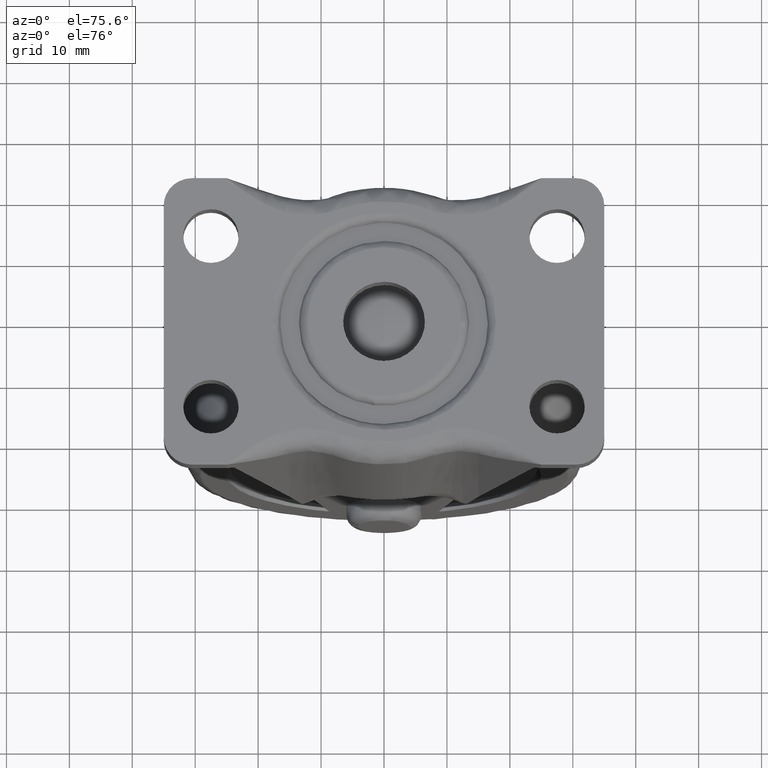
[diagram: clean part render]
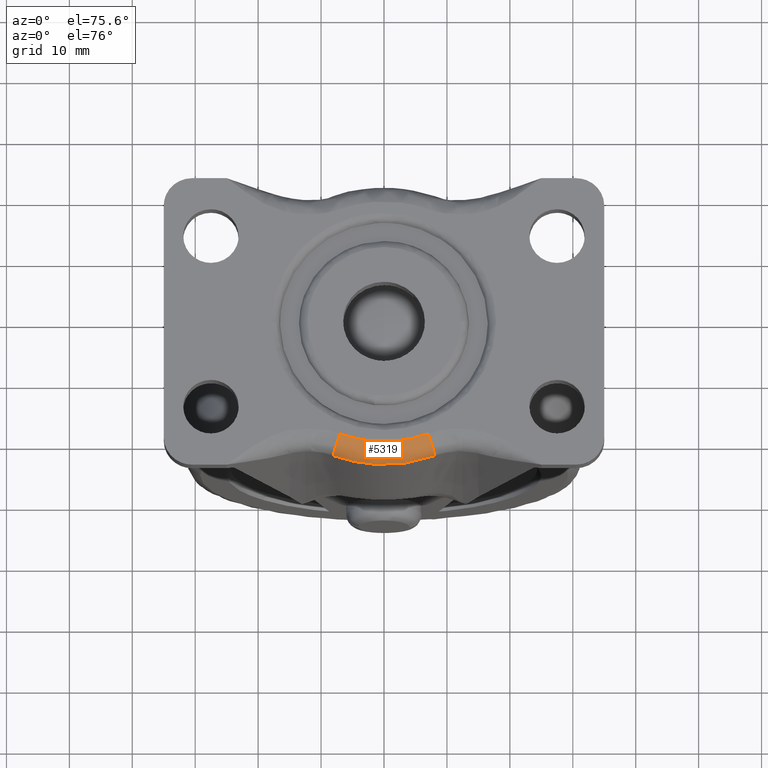
[diagram: same view with one face highlighted and labeled with its STEP entity id]
A machine part, auxiliary view. The second image highlights one B-rep face of the part: STEP entity #5319.
In plain terms, the highlighted face is a freeform B-spline surface patch.
Its self-contained STEP definition (entity closure, byte-faithful):
#5199=CARTESIAN_POINT('',(6.969154960952889,-18.437629948739851,47.500000000000000));
#5200=VERTEX_POINT('',#5199);
#5201=CARTESIAN_POINT('',(8.028181929857791,-21.244330268261450,44.470080181659107));
#5202=VERTEX_POINT('',#5201);
#5203=CARTESIAN_POINT('',(6.969154960952889,-18.437629948739851,47.500000000000000));
#5204=CARTESIAN_POINT('',(7.082519288660951,-18.738075267077289,47.500202794065203));
#5205=CARTESIAN_POINT('',(7.256864889294961,-19.200137015620559,47.419880165065642));
#5206=CARTESIAN_POINT('',(7.505983782895984,-19.860367679049151,47.115267805148250));
#5207=CARTESIAN_POINT('',(7.697989639462304,-20.369233755927230,46.718848781508420));
#5208=CARTESIAN_POINT('',(7.860711458882400,-20.800489423600901,46.164775782040707));
#5209=CARTESIAN_POINT('',(7.992285732676799,-21.149195893920020,45.434224238160013));
#5210=CARTESIAN_POINT('',(8.029608097548861,-21.248109988166370,44.840608031218700));
#5211=CARTESIAN_POINT('',(8.028181929857791,-21.244330268261450,44.470080181659107));
#5212=B_SPLINE_CURVE_WITH_KNOTS('',3,(#5203,#5204,#5205,#5206,#5207,#5208,#5209,#5210,#5211),.UNSPECIFIED.,.F.,.U.,(4,1,1,1,1,1,4),(0.000000513800473,0.963299567854383,1.482030796310787,2.297187113919707,2.963970168876016,3.630927466986213,4.742429813872316),.UNSPECIFIED.);
#5213=EDGE_CURVE('',#5200,#5202,#5212,.T.);
#5233=CARTESIAN_POINT('',(-7.028530850593725,-18.392507814460558,47.500000000000014));
#5234=CARTESIAN_POINT('',(-7.032313070323609,-18.402423074932003,47.499999999999986));
#5235=CARTESIAN_POINT('',(-8.116030809306592,-21.243438253041134,47.500000000000000));
#5236=CARTESIAN_POINT('',(-8.105269686560458,-21.215130541815395,44.459475046977687));
#5237=CARTESIAN_POINT('',(-8.105232119103377,-21.215031718602273,44.448860467684042));
#5238=CARTESIAN_POINT('',(-7.006237605839647,-18.400919473378352,47.499999999999964));
#5239=CARTESIAN_POINT('',(-7.010007875544688,-18.410839267949594,47.499999999999993));
#5240=CARTESIAN_POINT('',(-8.090304089325823,-21.253160203895085,47.499999999999993));
#5241=CARTESIAN_POINT('',(-8.079561272225527,-21.224830669035772,44.459461384447344));
#5242=CARTESIAN_POINT('',(-8.079523768761245,-21.224731769865404,44.448846782120896));
#5243=CARTESIAN_POINT('',(-6.983944361807255,-18.409331132023869,47.500000000000000));
#5244=CARTESIAN_POINT('',(-6.987702681127334,-18.419255460830762,47.500000000000000));
#5245=CARTESIAN_POINT('',(-8.064577250623310,-21.262882199613184,47.500000000000000));
#5246=CARTESIAN_POINT('',(-8.053852858307458,-21.234530796098891,44.459447721917265));
#5247=CARTESIAN_POINT('',(-8.053815419251576,-21.234431820814393,44.448833096558154));
#5248=CARTESIAN_POINT('',(-2.503016862738630,-20.100069029238313,47.500000000000000));
#5249=CARTESIAN_POINT('',(-2.504365844040680,-20.110907497845872,47.499999999999972));
#5250=CARTESIAN_POINT('',(-2.891071257165511,-23.217914595839620,47.499999999999979));
#5251=CARTESIAN_POINT('',(-2.886470008767009,-23.184253185972189,44.456701557798979));
#5252=CARTESIAN_POINT('',(-2.886453953224020,-23.184135728237596,44.446082307383683));
#5253=CARTESIAN_POINT('',(2.503016862734386,-20.100069029156518,47.500000000000540));
#5254=CARTESIAN_POINT('',(2.504365844036429,-20.110907497763975,47.500000000000242));
#5255=CARTESIAN_POINT('',(2.891071257159724,-23.217914595728065,47.499999999923602));
#5256=CARTESIAN_POINT('',(2.886470008767029,-23.184253185972779,44.456701557817510));
#5257=CARTESIAN_POINT('',(2.886453953224061,-23.184135728238584,44.446082307402541));
#5258=CARTESIAN_POINT('',(6.983944362161292,-18.409331131890696,47.499999999999986));
#5259=CARTESIAN_POINT('',(6.987702681481562,-18.419255460697517,47.499999999999993));
#5260=CARTESIAN_POINT('',(8.064577251031885,-21.262882199459359,47.500000000000377));
#5261=CARTESIAN_POINT('',(8.053852858715718,-21.234530795944845,44.459447721917371));
#5262=CARTESIAN_POINT('',(8.053815419659834,-21.234431820660351,44.448833096558261));
#5263=CARTESIAN_POINT('',(7.006237606547729,-18.400919473112022,47.500000000000007));
#5264=CARTESIAN_POINT('',(7.010007876253152,-18.410839267683130,47.500000000000028));
#5265=CARTESIAN_POINT('',(8.090304090142967,-21.253160203587434,47.500000000000753));
#5266=CARTESIAN_POINT('',(8.079561273042046,-21.224830668727705,44.459461384447629));
#5267=CARTESIAN_POINT('',(8.079523769577749,-21.224731769557298,44.448846782121116));
#5268=CARTESIAN_POINT('',(7.028530851655843,-18.392507814061059,47.500000000000007));
#5269=CARTESIAN_POINT('',(7.032313071386300,-18.402423074532294,47.500000000000007));
#5270=CARTESIAN_POINT('',(8.116030810532299,-21.243438252579644,47.500000000001137));
#5271=CARTESIAN_POINT('',(8.105269687785226,-21.215130541353286,44.459475046978099));
#5272=CARTESIAN_POINT('',(8.105232120328136,-21.215031718140153,44.448860467684419));
#5280=(BOUNDED_SURFACE()B_SPLINE_SURFACE(2,3,((#5233,#5238,#5243,#5248,#5253,#5258,#5263,#5268),(#5234,#5239,#5244,#5249,#5254,#5259,#5264,#5269),(#5235,#5240,#5245,#5250,#5255,#5260,#5265,#5270),(#5236,#5241,#5246,#5251,#5256,#5261,#5266,#5271),(#5237,#5242,#5247,#5252,#5257,#5262,#5267,#5272)),.UNSPECIFIED.,.F.,.F.,.U.)B_SPLINE_SURFACE_WITH_KNOTS((3,1,1,3),(4,2,2,4),(0.0,0.025035070155007,5.032042027768559,5.057084283223937),(0.0,0.082432621646622,16.568957318162798,16.651389941118460),.UNSPECIFIED.)GEOMETRIC_REPRESENTATION_ITEM()RATIONAL_B_SPLINE_SURFACE(((1.002964236875457,1.002964253109472,1.002964269343486,1.002967532380459,1.002967532380459,1.002964269343486,1.002964253109471,1.002964236875456),(1.001482118437729,1.001482126554736,1.001482134671743,1.001483766190230,1.001483766190230,1.001482134671743,1.001482126554735,1.001482118437728),(0.703576731210787,0.703575107811638,0.703573484412488,0.703247181176152,0.703247181176152,0.703573484412514,0.703575107811689,0.703576731210865),(1.001482543819647,1.001482551938984,1.001482560058320,1.001484192045068,1.001484192045068,1.001482560058320,1.001482551938983,1.001482543819646),(1.002965087639294,1.002965103877967,1.002965120116641,1.002968384090136,1.002968384090136,1.002965120116641,1.002965103877967,1.002965087639293)))REPRESENTATION_ITEM('')SURFACE());
#5281=CARTESIAN_POINT('',(-6.969154960952869,-18.437629948739851,47.500000000000000));
#5282=VERTEX_POINT('',#5281);
#5283=CARTESIAN_POINT('',(-8.028181929857780,-21.244330268261450,44.470080181658197));
#5284=VERTEX_POINT('',#5283);
#5285=CARTESIAN_POINT('',(-6.969154960952869,-18.437629948739851,47.500000000000000));
#5286=CARTESIAN_POINT('',(-7.117426889639937,-18.830589601176630,47.500572980353617));
#5287=CARTESIAN_POINT('',(-7.352687856429614,-19.454093109630620,47.357585425362991));
#5288=CARTESIAN_POINT('',(-7.615893193847898,-20.151656558270219,46.907041189450823));
#5289=CARTESIAN_POINT('',(-7.786440349607181,-20.603651427728629,46.442610152821132));
#5290=CARTESIAN_POINT('',(-7.919264312650922,-20.955669903613568,45.887009782467253));
#5291=CARTESIAN_POINT('',(-8.009138130459606,-21.193859185441870,45.211624352818738));
#5292=CARTESIAN_POINT('',(-8.029070794870368,-21.246685994591459,44.717060487404837));
#5293=CARTESIAN_POINT('',(-8.028181929857780,-21.244330268261450,44.470080181658197));
#5294=B_SPLINE_CURVE_WITH_KNOTS('',3,(#5285,#5286,#5287,#5288,#5289,#5290,#5291,#5292,#5293),.UNSPECIFIED.,.F.,.U.,(4,1,1,1,1,1,4),(0.000000513801807,1.259713932545390,2.000778511873742,2.593488783699145,3.260401456533366,4.001437071581782,4.742429813872972),.UNSPECIFIED.);
#5295=EDGE_CURVE('',#5282,#5284,#5294,.T.);
#5296=ORIENTED_EDGE('',*,*,#5295,.T.);
#5297=CARTESIAN_POINT('',(8.028181929857791,-21.244330268261450,44.470080181659107));
#5298=CARTESIAN_POINT('',(6.029237986913849,-21.999495402684389,44.468974619856873));
#5299=CARTESIAN_POINT('',(2.406584468535459,-22.807546711471719,44.467791632692403));
#5300=CARTESIAN_POINT('',(-3.090315356116913,-22.683454949851271,44.467973303038420));
#5301=CARTESIAN_POINT('',(-6.348991327524381,-21.878346247034479,44.469151982227451));
#5302=CARTESIAN_POINT('',(-8.028181929857780,-21.244330268261450,44.470080181658197));
#5303=B_SPLINE_CURVE_WITH_KNOTS('',3,(#5297,#5298,#5299,#5300,#5301,#5302),.UNSPECIFIED.,.F.,.U.,(4,1,1,4),(0.000000035744357,6.410232711524822,11.025575119687890,16.410175454664799),.UNSPECIFIED.);
#5304=EDGE_CURVE('',#5202,#5284,#5303,.T.);
#5305=ORIENTED_EDGE('',*,*,#5304,.F.);
#5306=ORIENTED_EDGE('',*,*,#5213,.F.);
#5307=CARTESIAN_POINT('',(-6.969154960952869,-18.437629948739851,47.500000000000000));
#5308=CARTESIAN_POINT('',(-5.371781522932885,-19.036887090439581,47.500000000000149));
#5309=CARTESIAN_POINT('',(-2.677051236851014,-19.666309455453799,47.499999999999787));
#5310=CARTESIAN_POINT('',(0.744689536069063,-19.742788657595231,47.500000000000227));
#5311=CARTESIAN_POINT('',(3.772502360903479,-19.419220968844581,47.499999999999588));
#5312=CARTESIAN_POINT('',(5.718995682656139,-18.906452811894990,47.499999999999993));
#5313=CARTESIAN_POINT('',(6.969154960952889,-18.437629948739851,47.500000000000000));
#5314=B_SPLINE_CURVE_WITH_KNOTS('',3,(#5307,#5308,#5309,#5310,#5311,#5312,#5313),.UNSPECIFIED.,.F.,.U.,(4,1,1,1,4),(0.000000043742187,5.118112011665234,8.233469595314148,10.236216079475920,14.241694040006269),.UNSPECIFIED.);
#5315=EDGE_CURVE('',#5282,#5200,#5314,.T.);
#5316=ORIENTED_EDGE('',*,*,#5315,.F.);
#5317=EDGE_LOOP('',(#5296,#5305,#5306,#5316));
#5318=FACE_OUTER_BOUND('',#5317,.T.);
#5319=ADVANCED_FACE('',(#5318),#5280,.T.);